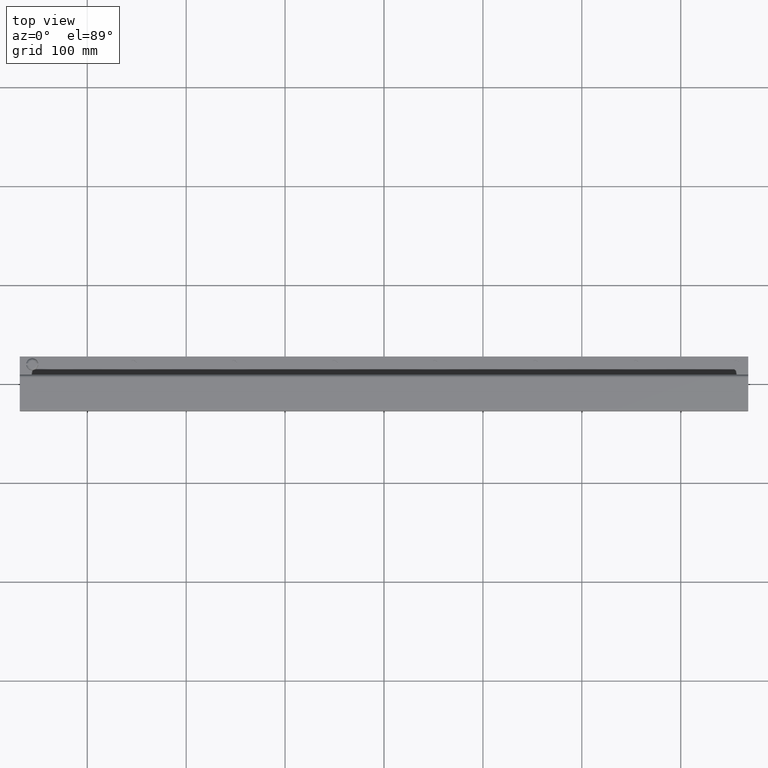
[diagram: clean part render]
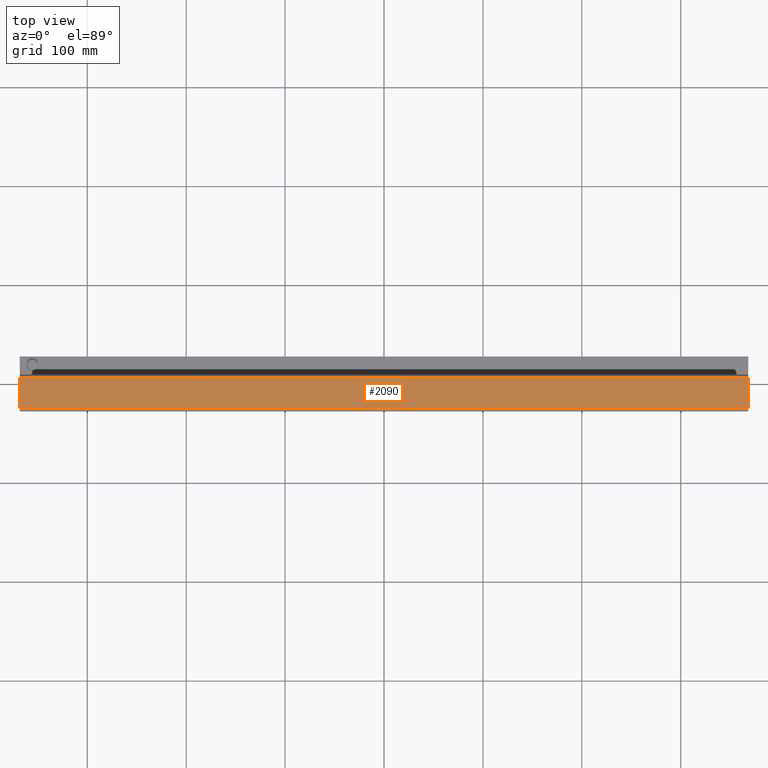
[diagram: same view with one face highlighted and labeled with its STEP entity id]
A machine part, top view. The second image highlights one B-rep face of the part: STEP entity #2090.
In plain terms, the highlighted planar face has unit normal (0, 0, 1).
Its self-contained STEP definition (entity closure, byte-faithful):
#32 = LINE ( 'NONE', #1435, #890 ) ;
#71 = ORIENTED_EDGE ( 'NONE', *, *, #494, .F. ) ;
#78 = CARTESIAN_POINT ( 'NONE',  ( -14.50000000000000178, 0.2455000000000000238, 0.5720000000000000639 ) ) ;
#189 = CARTESIAN_POINT ( 'NONE',  ( -14.50000000000000178, -1.094000000000000083, 0.5720000000000000639 ) ) ;
#251 = VERTEX_POINT ( 'NONE', #1159 ) ;
#256 = VECTOR ( 'NONE', #1622, 39.37007874015748143 ) ;
#334 = EDGE_CURVE ( 'NONE', #251, #1150, #373, .T. ) ;
#372 = EDGE_CURVE ( 'NONE', #2274, #2313, #1680, .T. ) ;
#373 = LINE ( 'NONE', #2348, #2427 ) ;
#494 = EDGE_CURVE ( 'NONE', #1150, #2274, #32, .T. ) ;
#726 = LINE ( 'NONE', #1781, #1251 ) ;
#765 = ORIENTED_EDGE ( 'NONE', *, *, #334, .F. ) ;
#818 = CARTESIAN_POINT ( 'NONE',  ( 14.50000000000000178, -0.9860000000000119780, 0.5720000000000000639 ) ) ;
#890 = VECTOR ( 'NONE', #1291, 39.37007874015748143 ) ;
#1150 = VERTEX_POINT ( 'NONE', #818 ) ;
#1159 = CARTESIAN_POINT ( 'NONE',  ( 14.50000000000000178, 0.2454999999999999960, 0.5719999999999999529 ) ) ;
#1226 = FACE_OUTER_BOUND ( 'NONE', #1874, .T. ) ;
#1251 = VECTOR ( 'NONE', #1373, 39.37007874015748143 ) ;
#1277 = ORIENTED_EDGE ( 'NONE', *, *, #372, .F. ) ;
#1291 = DIRECTION ( 'NONE',  ( -1.000000000000000000, -0.0000000000000000000, -0.0000000000000000000 ) ) ;
#1373 = DIRECTION ( 'NONE',  ( 1.000000000000000000, 2.523582145300259971E-34, -4.121322404234880307E-18 ) ) ;
#1435 = CARTESIAN_POINT ( 'NONE',  ( -14.50000000000000178, -0.9860000000000119780, 0.5719999999999999529 ) ) ;
#1441 = CARTESIAN_POINT ( 'NONE',  ( -14.50000000000000178, 1.094000000000000083, 0.5720000000000000639 ) ) ;
#1594 = DIRECTION ( 'NONE',  ( 0.0000000000000000000, -1.000000000000000000, -0.0000000000000000000 ) ) ;
#1622 = DIRECTION ( 'NONE',  ( 0.0000000000000000000, 1.000000000000000000, -0.0000000000000000000 ) ) ;
#1631 = CARTESIAN_POINT ( 'NONE',  ( -14.50000000000000178, -0.9860000000000120890, 0.5720000000000000639 ) ) ;
#1680 = LINE ( 'NONE', #1441, #256 ) ;
#1740 = PLANE ( 'NONE',  #1963 ) ;
#1781 = CARTESIAN_POINT ( 'NONE',  ( -14.50000000000000178, 0.2454999999999999960, 0.5719999999999999529 ) ) ;
#1874 = EDGE_LOOP ( 'NONE', ( #71, #765, #2217, #1277 ) ) ;
#1963 = AXIS2_PLACEMENT_3D ( 'NONE', #189, #2085, #2103 ) ;
#2085 = DIRECTION ( 'NONE',  ( 0.0000000000000000000, 0.0000000000000000000, 1.000000000000000000 ) ) ;
#2090 = ADVANCED_FACE ( 'NONE', ( #1226 ), #1740, .T. ) ;
#2103 = DIRECTION ( 'NONE',  ( 1.000000000000000000, 0.0000000000000000000, -0.0000000000000000000 ) ) ;
#2216 = EDGE_CURVE ( 'NONE', #2313, #251, #726, .T. ) ;
#2217 = ORIENTED_EDGE ( 'NONE', *, *, #2216, .F. ) ;
#2274 = VERTEX_POINT ( 'NONE', #1631 ) ;
#2313 = VERTEX_POINT ( 'NONE', #78 ) ;
#2348 = CARTESIAN_POINT ( 'NONE',  ( 14.50000000000000178, -1.094000000000000083, 0.5720000000000000639 ) ) ;
#2427 = VECTOR ( 'NONE', #1594, 39.37007874015748143 ) ;